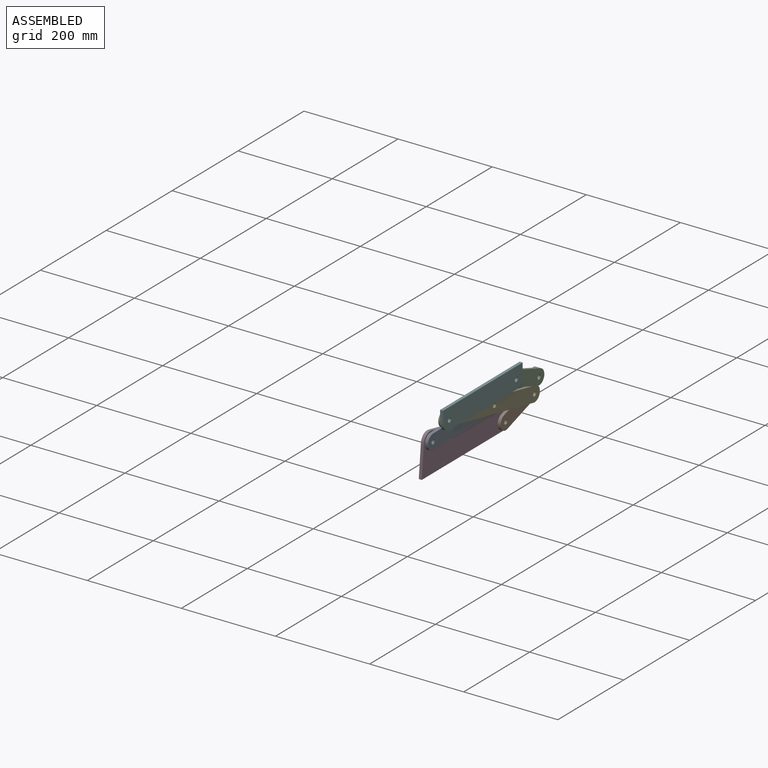
[diagram: assembled view]
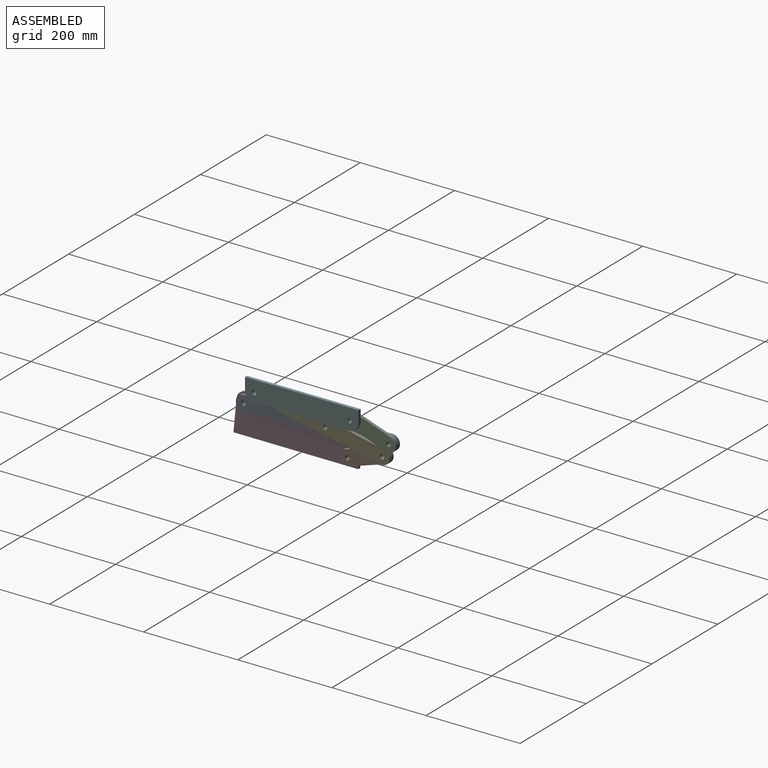
[diagram: assembled view, second angle]
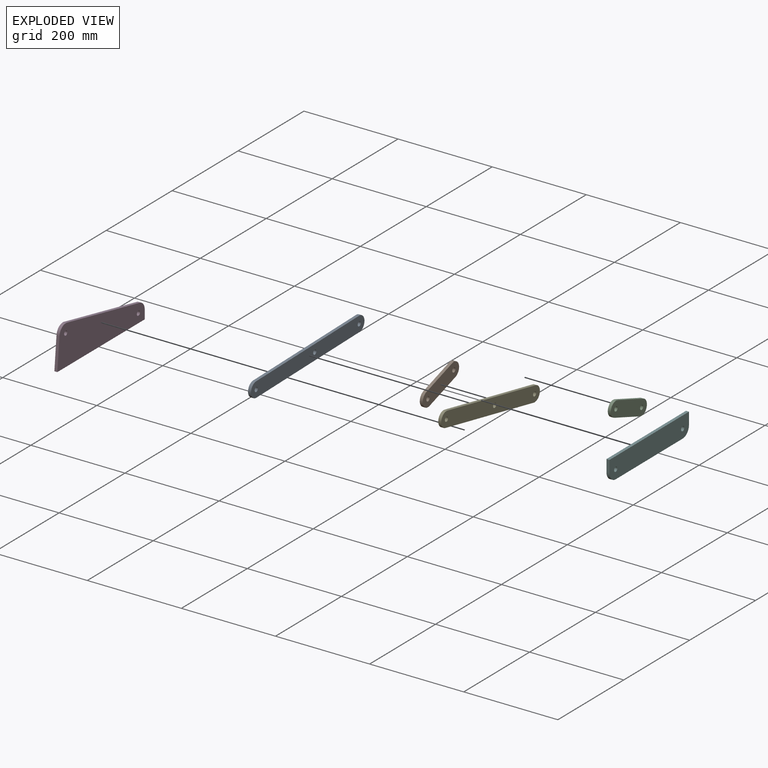
[diagram: exploded view]
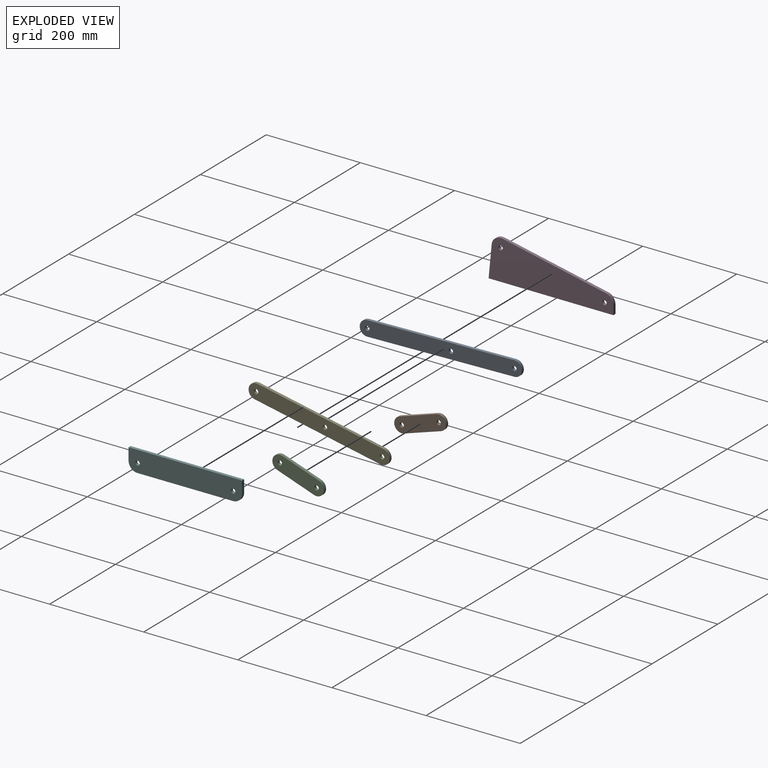
[diagram: exploded view, second angle]
ASSEMBLY  parts=6 mates=7
PART A: 9 faces, bbox 6.4x344.5x31.8 mm
  f0: plane 313.05x6.35mm, normal (0,0,1), area 1987.9mm2, adj f1,f5,f7,f8
  f1: cylinder r=15.88mm len=31.75mm, axis (-1,0,0), area 314.7mm2, adj f0,f2,f7,f8
  f2: plane 312.74x6.35mm, normal (0,0,-1), area 1985.9mm2, adj f1,f5,f7,f8
  f3: cylinder r=4.76mm len=9.53mm, axis (-1,0,0), area 190mm2, adj f7,f8
  f4: cylinder r=4.76mm len=9.53mm, axis (-1,0,0), area 190mm2, adj f7,f8
  f5: cylinder r=15.88mm len=31.75mm, axis (-1,0,0), area 316.7mm2, adj f0,f2,f7,f8
  f6: cylinder r=4.76mm len=9.53mm, axis (-1,0,0), area 190mm2, adj f7,f8
  f7: plane 344.49x31.75mm, normal (1,0,0), area 10506.9mm2, adj f0,f1,f2,f3,f4,f5,f6
  f8: plane 344.49x31.75mm, normal (-1,0,0), area 10506.9mm2, adj f0,f1,f2,f3,f4,f5,f6
PART B: 8 faces, bbox 6.4x114.3x31.8 mm
  f0: plane 82.91x6.35mm, normal (0,0,1), area 526.5mm2, adj f1,f4,f6,f7
  f1: cylinder r=15.88mm len=31.75mm, axis (-1,0,0), area 314.4mm2, adj f0,f2,f6,f7
  f2: plane 82.55x6.35mm, normal (0,0,-1), area 524.2mm2, adj f1,f4,f6,f7
  f3: cylinder r=4.76mm len=9.53mm, axis (-1,0,0), area 190mm2, adj f6,f7
  f4: cylinder r=15.88mm len=31.75mm, axis (-1,0,0), area 316.7mm2, adj f0,f2,f6,f7
  f5: cylinder r=4.76mm len=9.53mm, axis (-1,0,0), area 190mm2, adj f6,f7
  f6: plane 114.3x31.75mm, normal (1,0,0), area 3270mm2, adj f0,f1,f2,f3,f4,f5
  f7: plane 114.3x31.75mm, normal (-1,0,0), area 3270mm2, adj f0,f1,f2,f3,f4,f5
PART C: 8 faces, bbox 6.4x114.3x31.8 mm
  f0: plane 82.8x6.35mm, normal (0,0,1), area 525.7mm2, adj f1,f4,f6,f7
  f1: cylinder r=15.88mm len=31.75mm, axis (-1,0,0), area 315.1mm2, adj f0,f2,f6,f7
  f2: plane 82.55x6.35mm, normal (0,0,-1), area 524.2mm2, adj f1,f4,f6,f7
  f3: cylinder r=4.76mm len=9.53mm, axis (-1,0,0), area 190mm2, adj f6,f7
  f4: cylinder r=15.88mm len=31.75mm, axis (-1,0,0), area 316.7mm2, adj f0,f2,f6,f7
  f5: cylinder r=4.76mm len=9.53mm, axis (-1,0,0), area 190mm2, adj f6,f7
  f6: plane 114.3x31.75mm, normal (1,0,0), area 3270.1mm2, adj f0,f1,f2,f3,f4,f5
  f7: plane 114.3x31.75mm, normal (-1,0,0), area 3270.1mm2, adj f0,f1,f2,f3,f4,f5
PART D: 10 faces, bbox 6.4x265.1x84.2 mm
  f0: plane 265.11x6.35mm, normal (0,0,-1), area 1683.5mm2, adj f1,f7,f8,f9
  f1: plane 19.05x6.35mm, normal (0,1,0), area 121mm2, adj f0,f2,f8,f9
  f2: cylinder r=19.05mm len=18.65mm, axis (-1,0,0), area 165.1mm2, adj f1,f3,f8,f9
  f3: plane 220.66x46.1mm, normal (0,0.2,0.98), area 1431.4mm2, adj f2,f4,f8,f9
  f4: cylinder r=19.05mm len=22.86mm, axis (-1,0,0), area 203.3mm2, adj f3,f7,f8,f9
  f5: cylinder r=4.76mm len=9.53mm, axis (-1,0,0), area 190mm2, adj f8,f9
  f6: cylinder r=4.76mm len=9.53mm, axis (-1,0,0), area 190mm2, adj f8,f9
  f7: plane 66.97x6.44mm, normal (0,-1,0.1), area 427.2mm2, adj f0,f4,f8,f9
  f8: plane 265.11x84.2mm, normal (1,0,0), area 15825.3mm2, adj f0,f1,f2,f3,f4,f5,f6,f7
  f9: plane 265.11x84.2mm, normal (-1,0,0), area 15825.3mm2, adj f0,f1,f2,f3,f4,f5,f6,f7
PART E: 9 faces, bbox 6.4x304.8x31.8 mm
  f0: plane 273.36x6.35mm, normal (0,0,1), area 1735.8mm2, adj f1,f5,f7,f8
  f1: cylinder r=15.88mm len=31.75mm, axis (-1,0,0), area 314.7mm2, adj f0,f2,f7,f8
  f2: plane 273.05x6.35mm, normal (0,0,-1), area 1733.9mm2, adj f1,f5,f7,f8
  f3: cylinder r=4.76mm len=9.53mm, axis (-1,0,0), area 190mm2, adj f7,f8
  f4: cylinder r=4.76mm len=9.53mm, axis (-1,0,0), area 190mm2, adj f7,f8
  f5: cylinder r=15.88mm len=31.75mm, axis (-1,0,0), area 316.7mm2, adj f0,f2,f7,f8
  f6: cylinder r=4.76mm len=9.53mm, axis (-1,0,0), area 190mm2, adj f7,f8
  f7: plane 304.8x31.75mm, normal (1,0,0), area 9246.9mm2, adj f0,f1,f2,f3,f4,f5,f6
  f8: plane 304.8x31.75mm, normal (-1,0,0), area 9246.9mm2, adj f0,f1,f2,f3,f4,f5,f6
PART F: 10 faces, bbox 6.4x230.6x137.5 mm
  f0: plane 22.94x10.92mm, normal (0,0.9,0.43), area 161.3mm2, adj f1,f6,f8,f9
  f1: plane 217.88x103.7mm, normal (0,-0.43,0.9), area 1532.3mm2, adj f0,f2,f8,f9
  f2: plane 22.94x10.92mm, normal (0,-0.9,-0.43), area 161.3mm2, adj f1,f3,f8,f9
  f3: cylinder r=19.05mm len=25.39mm, axis (-1,0,0), area 190mm2, adj f2,f4,f8,f9
  f4: plane 183.48x87.32mm, normal (0,0.43,-0.9), area 1290.3mm2, adj f3,f6,f8,f9
  f5: cylinder r=4.76mm len=9.53mm, axis (-1,0,0), area 190mm2, adj f8,f9
  f6: cylinder r=19.05mm len=25.39mm, axis (-1,0,0), area 190mm2, adj f0,f4,f8,f9
  f7: cylinder r=4.76mm len=9.53mm, axis (-1,0,0), area 190mm2, adj f8,f9
  f8: plane 230.65x137.49mm, normal (1,0,0), area 10427.5mm2, adj f0,f1,f2,f3,f4,f5,f6,f7
  f9: plane 230.65x137.49mm, normal (-1,0,0), area 10427.5mm2, adj f0,f1,f2,f3,f4,f5,f6,f7
PLACE A rot(axis=(1,0,0),1.2deg) t=(46.45,-524.24,45.32)mm
PLACE B rot(axis=(1,0,0),18deg) t=(46.45,-273.29,-24.08)mm
PLACE C rot(axis=(1,0,0),160.9deg) t=(52.8,665.35,266.68)mm
PLACE D t=(40.1,-136.79,125.91)mm fixed
PLACE E rot(axis=(1,0,0),168.7deg) t=(52.8,658.15,402.9)mm
PLACE F rot(axis=(-1,0,0),25.3deg) t=(59.15,-246.56,29.3)mm
MATE revolute A.f5 <-> C.f1  axis (1,0,0) through (52.8,201.28,197.65)mm
MATE revolute A.f1 <-> D.f4  axis (-1,0,0) through (46.45,-111.39,191.06)mm
MATE revolute E.f1 <-> B.f3  axis (-1,0,0) through (52.8,187.78,170.47)mm
MATE revolute A.f4 <-> E.f4  axis (1,0,0) through (52.8,66.37,194.8)mm
MATE revolute D.f2 <-> B.f1  axis (1,0,0) through (46.45,109.27,144.96)mm
MATE revolute C.f3 <-> F.f5  axis (1,0,0) through (59.15,123.26,224.61)mm
MATE revolute F.f3 <-> E.f5  axis (-1,0,0) through (59.15,-79.94,224.13)mm
